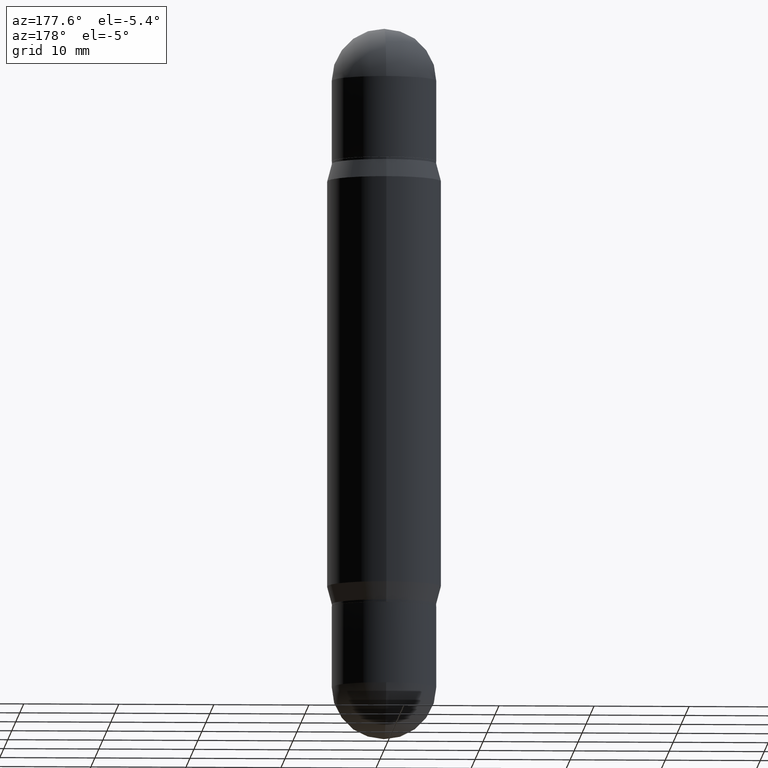
[diagram: clean part render]
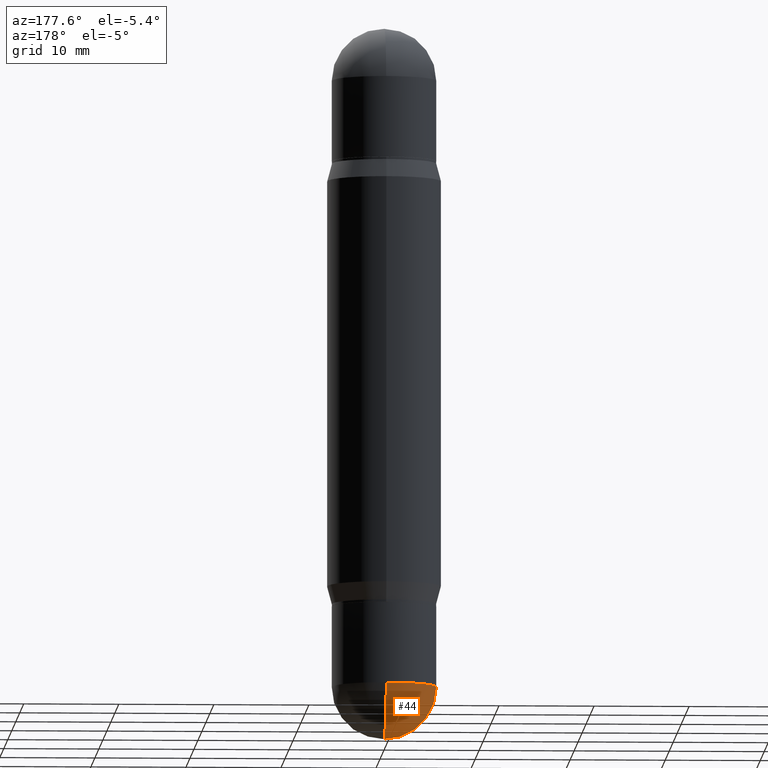
[diagram: same view with one face highlighted and labeled with its STEP entity id]
A machine part, auxiliary view. The second image highlights one B-rep face of the part: STEP entity #44.
In plain terms, the highlighted spherical surface has radius 5.5004 mm.
Its self-contained STEP definition (entity closure, byte-faithful):
#23 = DIRECTION ( 'NONE',  ( 6.982962677686265922E-15, 1.000000000000000000, -2.523064413451173785E-15 ) ) ;
#44 = ADVANCED_FACE ( 'NONE', ( #471 ), #719, .T. ) ;
#48 = DIRECTION ( 'NONE',  ( -1.000000000000000000, 6.982962677686265922E-15, -4.883557194083112340E-29 ) ) ;
#112 = CIRCLE ( 'NONE', #1085, 0.2165500000000001035 ) ;
#139 = EDGE_CURVE ( 'NONE', #307, #1036, #273, .T. ) ;
#154 = DIRECTION ( 'NONE',  ( 1.000000000000000000, -6.982962677686265922E-15, 4.883557194083112340E-29 ) ) ;
#166 = ORIENTED_EDGE ( 'NONE', *, *, #139, .T. ) ;
#184 = CARTESIAN_POINT ( 'NONE',  ( 7.252127585071107106E-29, -1.026504139929409708E-14, -2.952799999999999869 ) ) ;
#188 = CIRCLE ( 'NONE', #277, 0.2165500000000001035 ) ;
#207 = EDGE_CURVE ( 'NONE', #467, #351, #112, .T. ) ;
#229 = DIRECTION ( 'NONE',  ( -1.000000000000000000, 7.105427357601001070E-15, -4.926315508542082329E-29 ) ) ;
#244 = CARTESIAN_POINT ( 'NONE',  ( -0.2165500000000001035, -7.430673404099130988E-15, -2.736249999999999627 ) ) ;
#266 = CARTESIAN_POINT ( 'NONE',  ( 6.691414020924079206E-29, -9.553565813409555750E-15, -2.736249999999999627 ) ) ;
#273 = CIRCLE ( 'NONE', #993, 0.2165500000000003811 ) ;
#277 = AXIS2_PLACEMENT_3D ( 'NONE', #266, #440, #287 ) ;
#287 = DIRECTION ( 'NONE',  ( 1.000000000000000000, -6.982962677686270655E-15, 0.000000000000000000 ) ) ;
#307 = VERTEX_POINT ( 'NONE', #184 ) ;
#325 = AXIS2_PLACEMENT_3D ( 'NONE', #643, #48, #23 ) ;
#351 = VERTEX_POINT ( 'NONE', #244 ) ;
#407 = ORIENTED_EDGE ( 'NONE', *, *, #570, .F. ) ;
#432 = AXIS2_PLACEMENT_3D ( 'NONE', #825, #154, #573 ) ;
#440 = DIRECTION ( 'NONE',  ( -2.445468806185136597E-29, 3.491481338843145583E-15, 1.000000000000000000 ) ) ;
#464 = ORIENTED_EDGE ( 'NONE', *, *, #1076, .F. ) ;
#467 = VERTEX_POINT ( 'NONE', #895 ) ;
#471 = FACE_OUTER_BOUND ( 'NONE', #897, .T. ) ;
#484 = DIRECTION ( 'NONE',  ( -7.105427357601001070E-15, -1.000000000000000000, 0.000000000000000000 ) ) ;
#570 = EDGE_CURVE ( 'NONE', #307, #467, #673, .T. ) ;
#573 = DIRECTION ( 'NONE',  ( 6.982962677686265922E-15, 1.000000000000000000, 0.000000000000000000 ) ) ;
#643 = CARTESIAN_POINT ( 'NONE',  ( 6.713302002095624841E-29, -9.522220978585379288E-15, -2.736249999999999627 ) ) ;
#673 = CIRCLE ( 'NONE', #432, 0.2165500000000003811 ) ;
#677 = CARTESIAN_POINT ( 'NONE',  ( -1.538680294288431227E-15, -0.2165500000000098180, -2.736249999999999183 ) ) ;
#719 = SPHERICAL_SURFACE ( 'NONE', #325, 0.2165500000000003811 ) ;
#739 = CARTESIAN_POINT ( 'NONE',  ( 6.691414020924079206E-29, -9.553565813409555750E-15, -2.736249999999999627 ) ) ;
#747 = DIRECTION ( 'NONE',  ( -2.445468806185136597E-29, 3.491481338843145583E-15, 1.000000000000000000 ) ) ;
#825 = CARTESIAN_POINT ( 'NONE',  ( 6.713302002095624841E-29, -9.522220978585379288E-15, -2.736249999999999627 ) ) ;
#830 = CARTESIAN_POINT ( 'NONE',  ( 6.713302002095624841E-29, -9.522220978585379288E-15, -2.736249999999999627 ) ) ;
#874 = ORIENTED_EDGE ( 'NONE', *, *, #207, .F. ) ;
#895 = CARTESIAN_POINT ( 'NONE',  ( 1.512160567853029651E-15, 0.2165499999999906944, -2.736250000000000071 ) ) ;
#897 = EDGE_LOOP ( 'NONE', ( #407, #166, #464, #874 ) ) ;
#989 = DIRECTION ( 'NONE',  ( 1.000000000000000000, -6.982962677686270655E-15, 0.000000000000000000 ) ) ;
#993 = AXIS2_PLACEMENT_3D ( 'NONE', #830, #229, #484 ) ;
#1036 = VERTEX_POINT ( 'NONE', #677 ) ;
#1076 = EDGE_CURVE ( 'NONE', #351, #1036, #188, .T. ) ;
#1085 = AXIS2_PLACEMENT_3D ( 'NONE', #739, #747, #989 ) ;